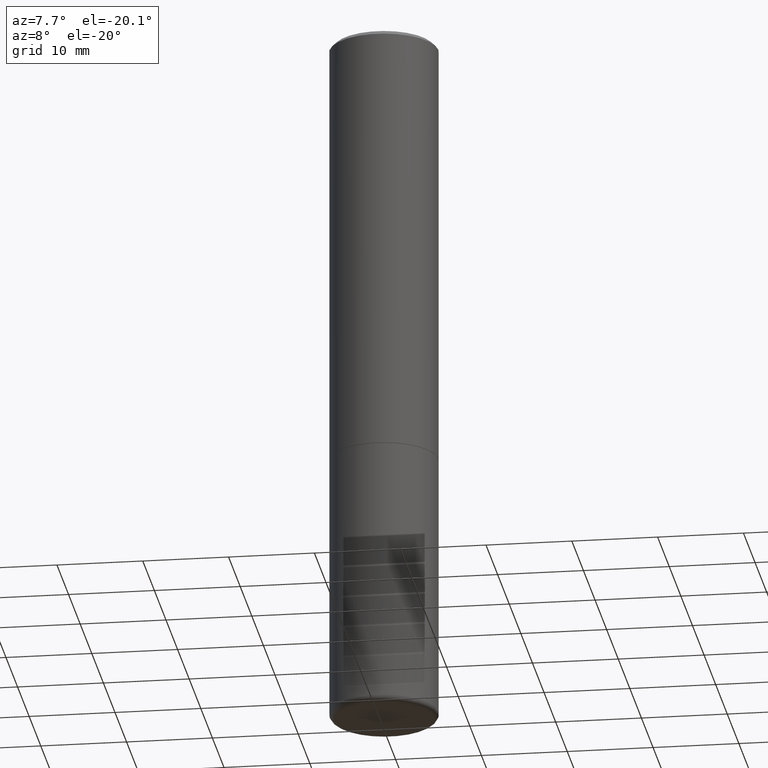
[diagram: clean part render]
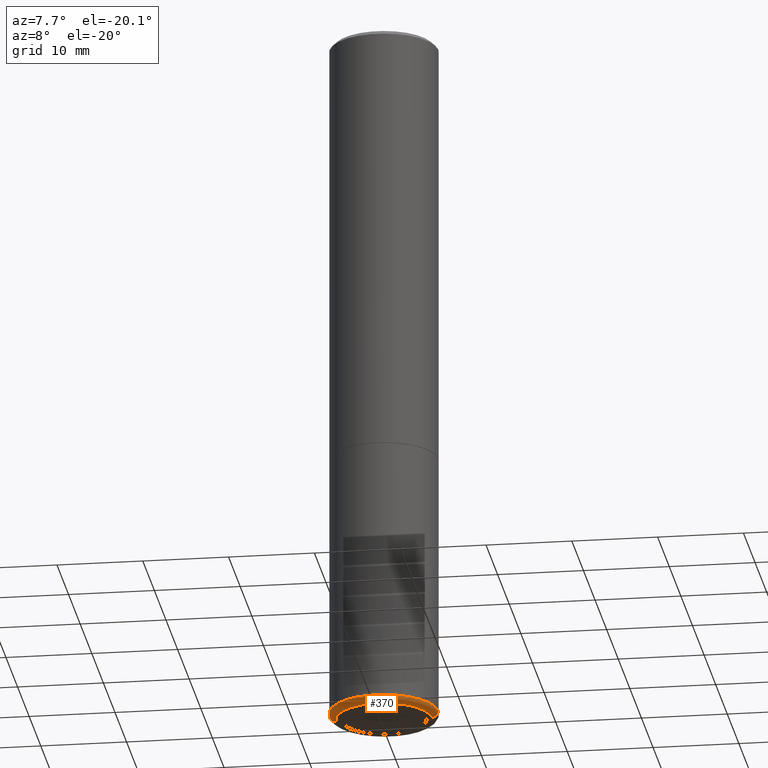
[diagram: same view with one face highlighted and labeled with its STEP entity id]
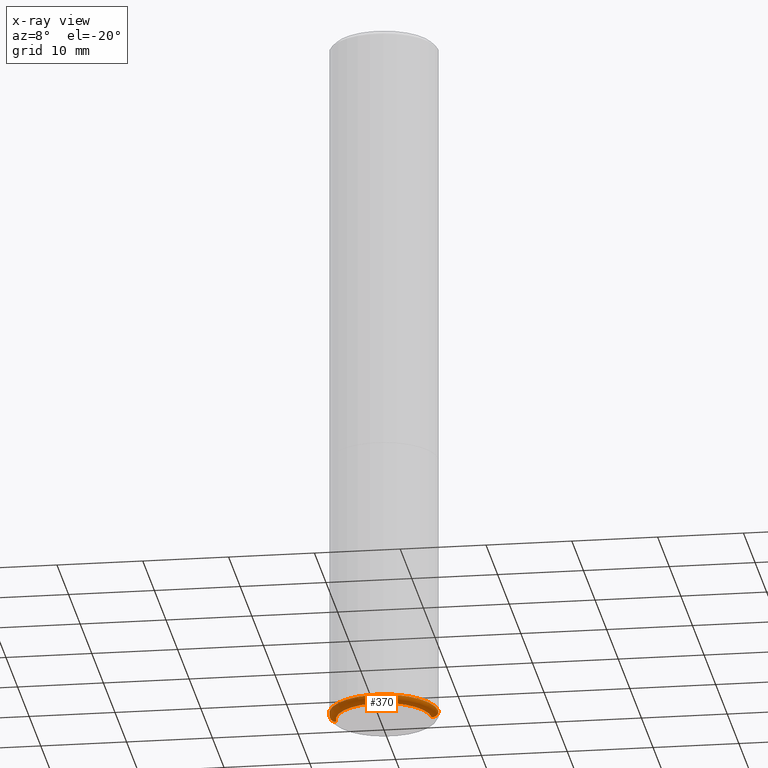
[diagram: x-ray of the same camera — body ghosted, the highlighted face saturated]
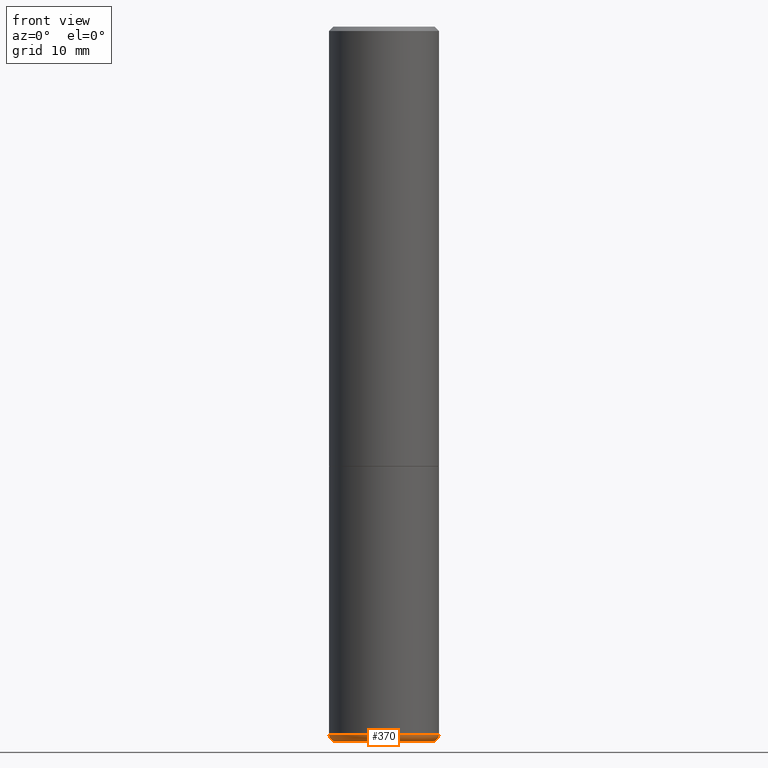
[diagram: same view with one face highlighted and labeled with its STEP entity id]
A machine part, auxiliary view. The second image highlights one B-rep face of the part: STEP entity #370.
The next image is the same camera in x-ray: the body ghosted, the highlighted face saturated — about 0% of this face is hidden behind the body in this view.
A second angle (front view) of the same face is appended — the face is thin or edge-on in the first view.
In plain terms, the highlighted toroidal blend (fillet) surface has major radius 5.588 mm and minor (blend) radius 0.762 mm.
Its self-contained STEP definition (entity closure, byte-faithful):
#1 = DIRECTION ( 'NONE',  ( -2.445468806185136597E-29, 3.491481338843145583E-15, 1.000000000000000000 ) ) ;
#31 = EDGE_CURVE ( 'NONE', #258, #380, #90, .T. ) ;
#52 = DIRECTION ( 'NONE',  ( 7.105427357601001859E-15, 1.000000000000000000, -3.491481338843145583E-15 ) ) ;
#54 = CARTESIAN_POINT ( 'NONE',  ( 0.2200000000000002232, -1.277882568851323406E-14, -3.220001142308074993 ) ) ;
#57 = CARTESIAN_POINT ( 'NONE',  ( 0.2197382039350491423, -1.288173802818048494E-14, -3.250000000000000000 ) ) ;
#70 = ORIENTED_EDGE ( 'NONE', *, *, #137, .T. ) ;
#71 = DIRECTION ( 'NONE',  ( -2.445468806185136597E-29, 3.491481338843145583E-15, 1.000000000000000000 ) ) ;
#74 = VERTEX_POINT ( 'NONE', #57 ) ;
#87 = CARTESIAN_POINT ( 'NONE',  ( -0.2200000000000002232, -9.679379880750033900E-15, -3.220001142308074993 ) ) ;
#90 = CIRCLE ( 'NONE', #316, 0.02999999999999981501 ) ;
#109 = TOROIDAL_SURFACE ( 'NONE', #116, 0.2200000000000002232, 0.02999999999999980807 ) ;
#116 = AXIS2_PLACEMENT_3D ( 'NONE', #487, #71, #182 ) ;
#134 = DIRECTION ( 'NONE',  ( 1.000000000000000000, -6.982962677686246200E-15, 0.000000000000000000 ) ) ;
#135 = DIRECTION ( 'NONE',  ( -6.982962677686266711E-15, -1.000000000000000000, 3.491481338843145583E-15 ) ) ;
#137 = EDGE_CURVE ( 'NONE', #74, #306, #229, .T. ) ;
#143 = CARTESIAN_POINT ( 'NONE',  ( 7.874412349394905166E-29, -1.124257389942225570E-14, -3.220001142308074993 ) ) ;
#150 = DIRECTION ( 'NONE',  ( 1.000000000000000000, -6.982962677686269077E-15, 0.000000000000000000 ) ) ;
#178 = DIRECTION ( 'NONE',  ( 1.000000000000000000, -6.982962677686265133E-15, 0.000000000000000000 ) ) ;
#182 = DIRECTION ( 'NONE',  ( 1.000000000000000000, -6.982962677686269866E-15, 4.883557194083114022E-29 ) ) ;
#183 = ORIENTED_EDGE ( 'NONE', *, *, #31, .F. ) ;
#193 = DIRECTION ( 'NONE',  ( -1.000000000000000000, 7.105427357600969515E-15, 0.000000000000000000 ) ) ;
#194 = CIRCLE ( 'NONE', #256, 0.2500000000000000555 ) ;
#205 = AXIS2_PLACEMENT_3D ( 'NONE', #260, #451, #178 ) ;
#229 = CIRCLE ( 'NONE', #373, 0.02999999999999981501 ) ;
#256 = AXIS2_PLACEMENT_3D ( 'NONE', #143, #1, #150 ) ;
#258 = VERTEX_POINT ( 'NONE', #415 ) ;
#260 = CARTESIAN_POINT ( 'NONE',  ( 7.947773620101693940E-29, -1.134731435124022443E-14, -3.250000000000000000 ) ) ;
#303 = EDGE_LOOP ( 'NONE', ( #183, #376, #70, #351 ) ) ;
#306 = VERTEX_POINT ( 'NONE', #381 ) ;
#316 = AXIS2_PLACEMENT_3D ( 'NONE', #87, #52, #193 ) ;
#332 = EDGE_CURVE ( 'NONE', #380, #306, #194, .T. ) ;
#351 = ORIENTED_EDGE ( 'NONE', *, *, #332, .F. ) ;
#367 = CIRCLE ( 'NONE', #205, 0.2197382039350491423 ) ;
#370 = ADVANCED_FACE ( 'NONE', ( #456 ), #109, .T. ) ;
#373 = AXIS2_PLACEMENT_3D ( 'NONE', #54, #135, #134 ) ;
#376 = ORIENTED_EDGE ( 'NONE', *, *, #384, .T. ) ;
#380 = VERTEX_POINT ( 'NONE', #416 ) ;
#381 = CARTESIAN_POINT ( 'NONE',  ( 0.2500000000000000555, -1.298831456884382237E-14, -3.220001142308074993 ) ) ;
#384 = EDGE_CURVE ( 'NONE', #258, #74, #367, .T. ) ;
#415 = CARTESIAN_POINT ( 'NONE',  ( -0.2197382039350491423, -9.626098782756011188E-15, -3.250000000000000000 ) ) ;
#416 = CARTESIAN_POINT ( 'NONE',  ( -0.2500000000000000555, -7.336411449154020205E-15, -3.220001142308074993 ) ) ;
#451 = DIRECTION ( 'NONE',  ( -2.445468806185136597E-29, 3.491481338843145583E-15, 1.000000000000000000 ) ) ;
#456 = FACE_OUTER_BOUND ( 'NONE', #303, .T. ) ;
#487 = CARTESIAN_POINT ( 'NONE',  ( 7.874412349394905166E-29, -1.124257389942225570E-14, -3.220001142308074993 ) ) ;